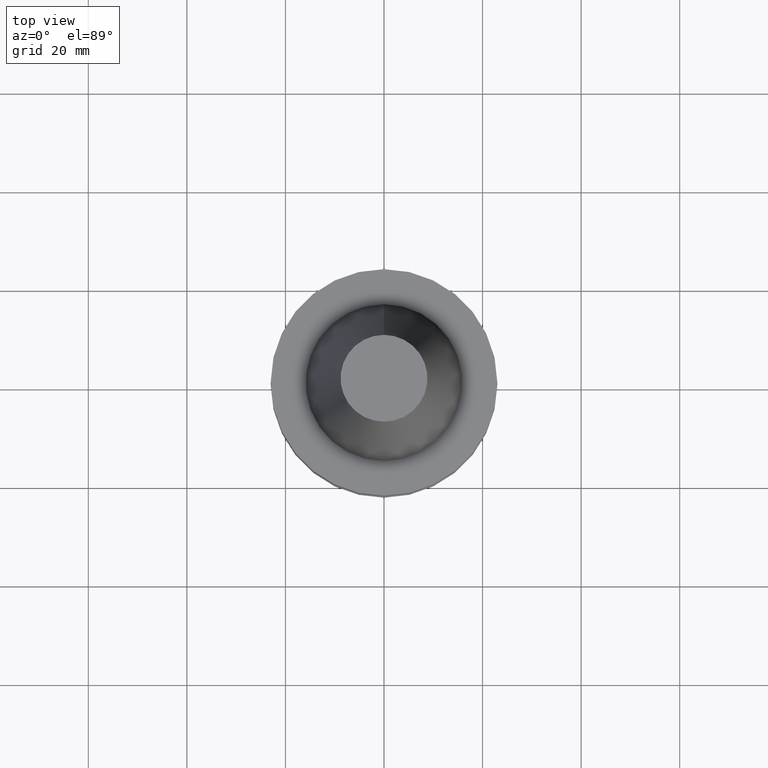
[diagram: clean part render]
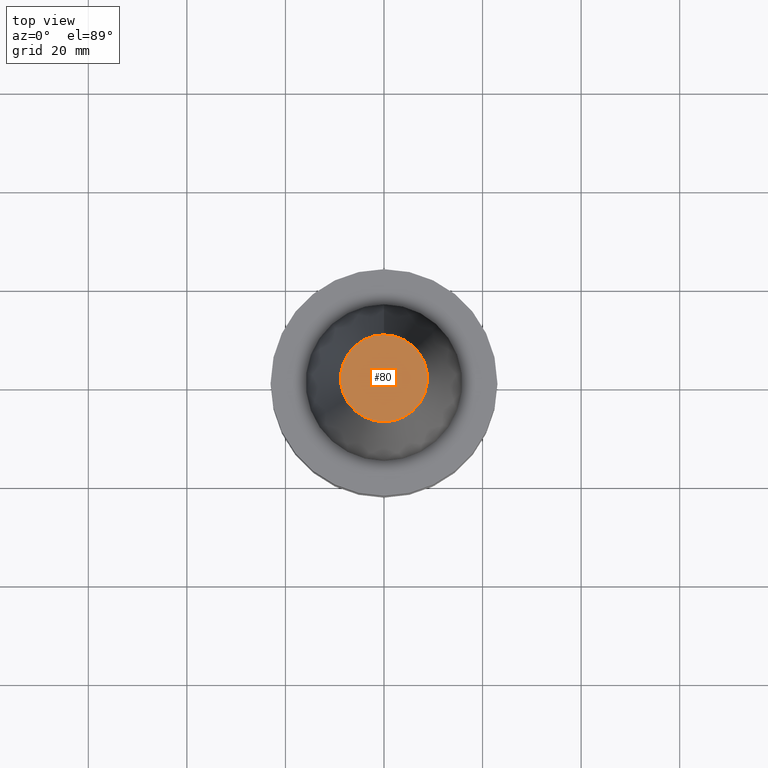
[diagram: same view with one face highlighted and labeled with its STEP entity id]
A machine part, top view. The second image highlights one B-rep face of the part: STEP entity #80.
In plain terms, the highlighted planar face has unit normal (-0, -0, 1).
Its self-contained STEP definition (entity closure, byte-faithful):
#80=ADVANCED_FACE('',(#108),#109,.T.);
#108=FACE_OUTER_BOUND('',#157,.T.);
#109=PLANE('',#158);
#157=EDGE_LOOP('',(#216));
#158=AXIS2_PLACEMENT_3D('',#217,#218,#219);
#216=ORIENTED_EDGE('',*,*,#280,.F.);
#217=CARTESIAN_POINT('',(-2.96364525393659E-015,4.40825000099333,48.4));
#218=DIRECTION('',(-6.12323399573677E-017,-1.22464679914735E-016,1.0));
#219=DIRECTION('',(1.23259516440783E-032,-1.0,-1.22464679914735E-016));
#280=EDGE_CURVE('',#302,#302,#303,.T.);
#302=VERTEX_POINT('',#334);
#303=CIRCLE('',#335,8.81650000198667);
#334=CARTESIAN_POINT('',(-2.96364525393659E-015,8.81650000198666,48.4));
#335=AXIS2_PLACEMENT_3D('',#372,#373,#374);
#372=CARTESIAN_POINT('',(-2.96364525393659E-015,-5.92729050787319E-015,48.4));
#373=DIRECTION('',(6.12323399573676E-017,1.22464679914735E-016,-1.0));
#374=DIRECTION('',(-1.23259516440783E-032,1.0,1.22464679914735E-016));